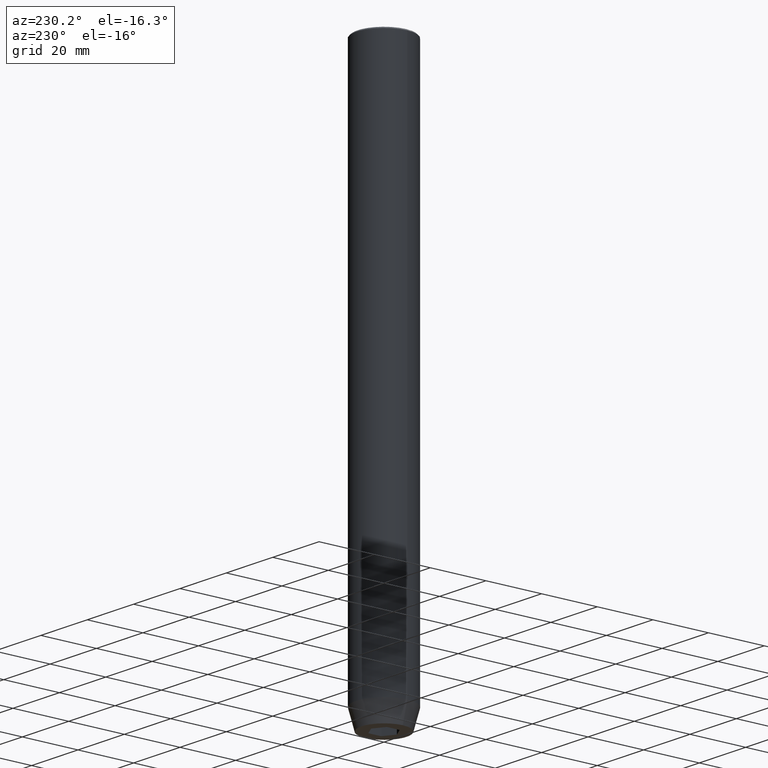
[diagram: clean part render]
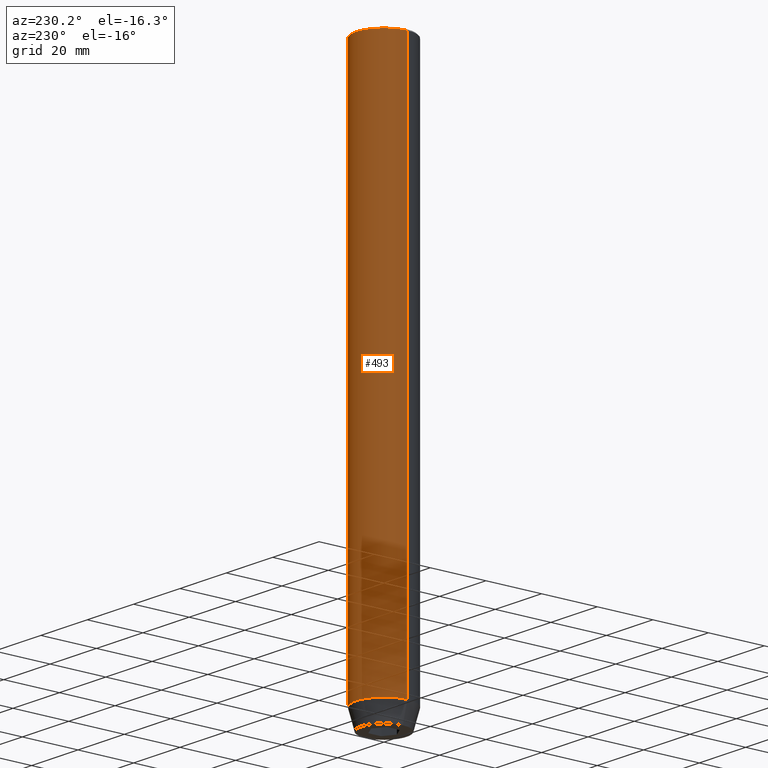
[diagram: same view with one face highlighted and labeled with its STEP entity id]
A machine part, auxiliary view. The second image highlights one B-rep face of the part: STEP entity #493.
In plain terms, the highlighted cylindrical surface (edge-blend (fillet) strip) has radius 10 mm, axis along (-0, -0, 1).
Its self-contained STEP definition (entity closure, byte-faithful):
#8 = CARTESIAN_POINT ( 'NONE',  ( 0.000000000000000000, 0.000000000000000000, -0.4999999999999987232 ) ) ;
#18 = CARTESIAN_POINT ( 'NONE',  ( 10.00000000000000000, 0.000000000000000000, -0.4999999999999987232 ) ) ;
#19 = CYLINDRICAL_SURFACE ( 'NONE', #546, 10.00000000000000000 ) ;
#24 = LINE ( 'NONE', #203, #257 ) ;
#30 = DIRECTION ( 'NONE',  ( -0.000000000000000000, -0.000000000000000000, 1.000000000000000000 ) ) ;
#37 = DIRECTION ( 'NONE',  ( 1.000000000000000000, 0.000000000000000000, 0.000000000000000000 ) ) ;
#44 = VERTEX_POINT ( 'NONE', #18 ) ;
#53 = VERTEX_POINT ( 'NONE', #569 ) ;
#66 = FACE_OUTER_BOUND ( 'NONE', #227, .T. ) ;
#83 = EDGE_CURVE ( 'NONE', #53, #89, #453, .T. ) ;
#89 = VERTEX_POINT ( 'NONE', #210 ) ;
#101 = EDGE_CURVE ( 'NONE', #53, #44, #24, .T. ) ;
#122 = DIRECTION ( 'NONE',  ( 1.000000000000000000, 0.000000000000000000, 0.000000000000000000 ) ) ;
#193 = DIRECTION ( 'NONE',  ( 1.000000000000000000, 0.000000000000000000, 0.000000000000000000 ) ) ;
#195 = AXIS2_PLACEMENT_3D ( 'NONE', #8, #281, #193 ) ;
#197 = ORIENTED_EDGE ( 'NONE', *, *, #224, .T. ) ;
#203 = CARTESIAN_POINT ( 'NONE',  ( 10.00000000000000000, 0.000000000000000000, 0.000000000000000000 ) ) ;
#210 = CARTESIAN_POINT ( 'NONE',  ( -10.00000000000000000, 1.224646799147353256E-15, -193.0000000000000000 ) ) ;
#224 = EDGE_CURVE ( 'NONE', #517, #44, #573, .T. ) ;
#227 = EDGE_LOOP ( 'NONE', ( #233, #239, #197, #366 ) ) ;
#233 = ORIENTED_EDGE ( 'NONE', *, *, #83, .T. ) ;
#239 = ORIENTED_EDGE ( 'NONE', *, *, #382, .T. ) ;
#257 = VECTOR ( 'NONE', #401, 1000.000000000000000 ) ;
#258 = VECTOR ( 'NONE', #561, 1000.000000000000000 ) ;
#262 = CARTESIAN_POINT ( 'NONE',  ( 0.000000000000000000, 0.000000000000000000, -193.0000000000000000 ) ) ;
#275 = AXIS2_PLACEMENT_3D ( 'NONE', #262, #30, #122 ) ;
#281 = DIRECTION ( 'NONE',  ( 0.000000000000000000, 0.000000000000000000, -1.000000000000000000 ) ) ;
#304 = CARTESIAN_POINT ( 'NONE',  ( -10.00000000000000000, 1.224646799147353256E-15, 0.000000000000000000 ) ) ;
#366 = ORIENTED_EDGE ( 'NONE', *, *, #101, .F. ) ;
#382 = EDGE_CURVE ( 'NONE', #89, #517, #571, .T. ) ;
#396 = CARTESIAN_POINT ( 'NONE',  ( 0.000000000000000000, 0.000000000000000000, 0.000000000000000000 ) ) ;
#401 = DIRECTION ( 'NONE',  ( -0.000000000000000000, -0.000000000000000000, 1.000000000000000000 ) ) ;
#453 = CIRCLE ( 'NONE', #275, 10.00000000000000000 ) ;
#493 = ADVANCED_FACE ( 'NONE', ( #66 ), #19, .T. ) ;
#496 = CARTESIAN_POINT ( 'NONE',  ( -10.00000000000000000, 1.224646799147353256E-15, -0.4999999999999987232 ) ) ;
#517 = VERTEX_POINT ( 'NONE', #496 ) ;
#546 = AXIS2_PLACEMENT_3D ( 'NONE', #396, #560, #37 ) ;
#560 = DIRECTION ( 'NONE',  ( -0.000000000000000000, -0.000000000000000000, 1.000000000000000000 ) ) ;
#561 = DIRECTION ( 'NONE',  ( -0.000000000000000000, -0.000000000000000000, 1.000000000000000000 ) ) ;
#569 = CARTESIAN_POINT ( 'NONE',  ( 10.00000000000000000, 0.000000000000000000, -193.0000000000000000 ) ) ;
#571 = LINE ( 'NONE', #304, #258 ) ;
#573 = CIRCLE ( 'NONE', #195, 10.00000000000000000 ) ;